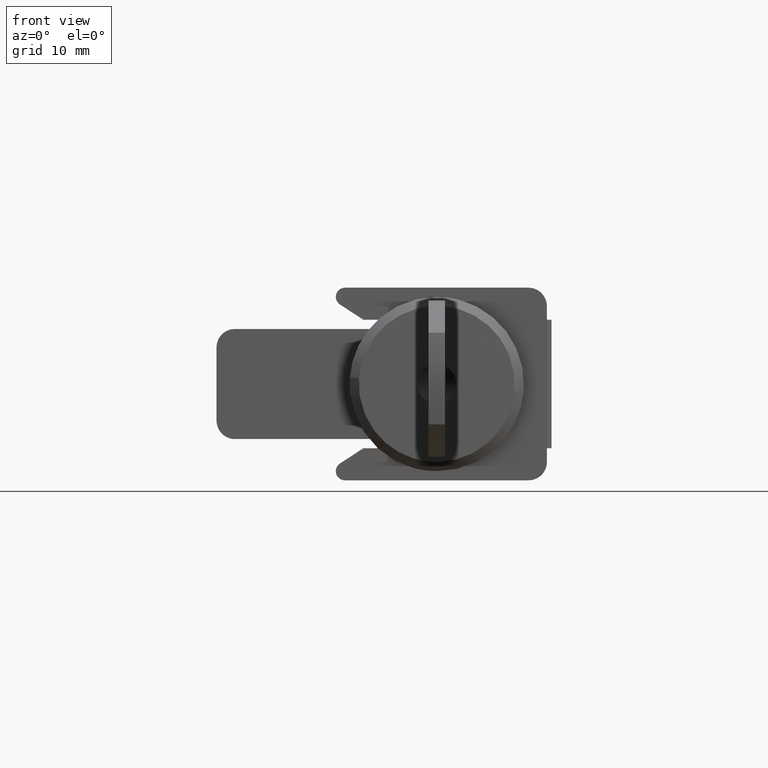
[diagram: clean part render]
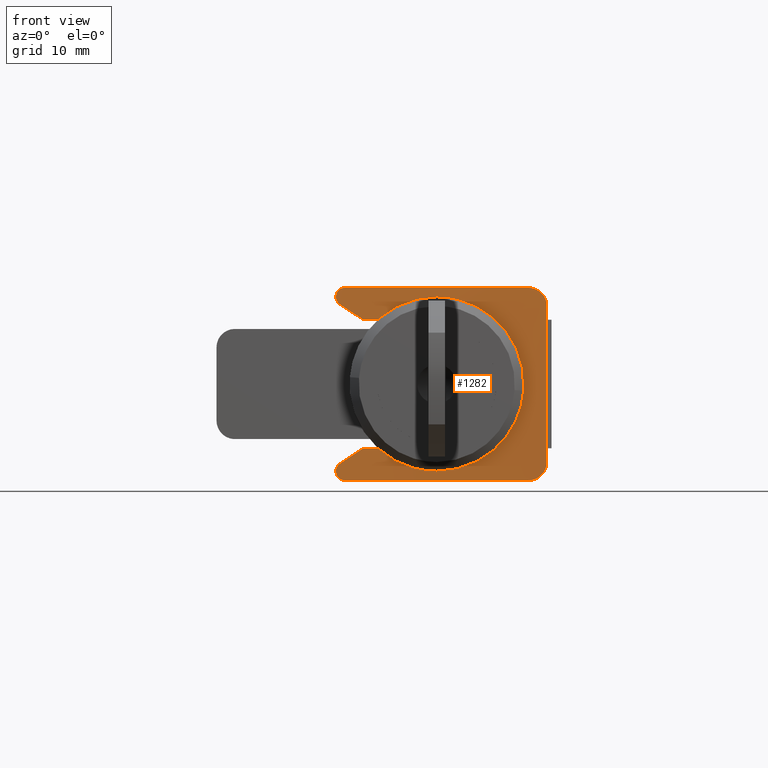
[diagram: same view with one face highlighted and labeled with its STEP entity id]
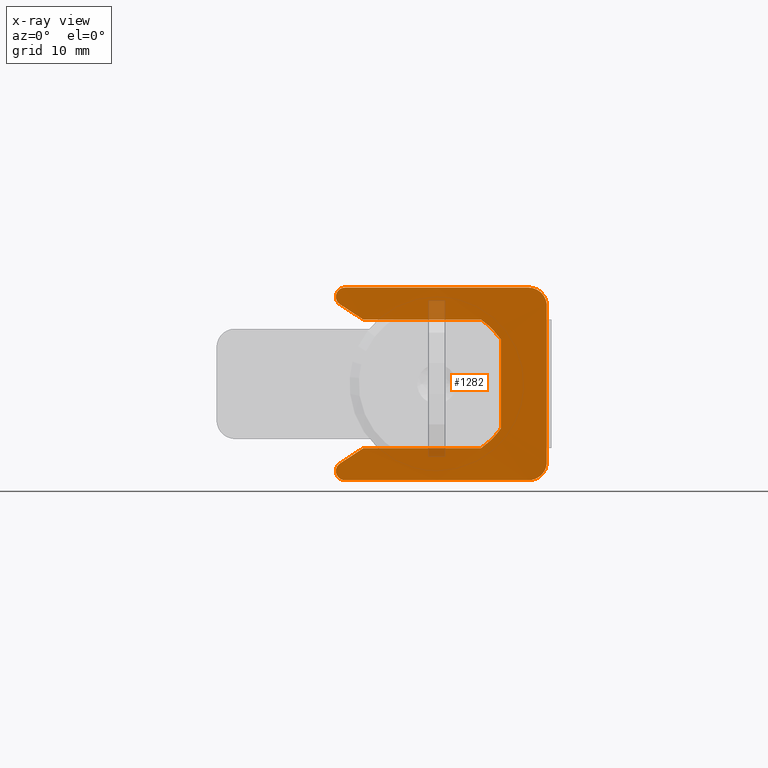
[diagram: x-ray of the same camera — body ghosted, the highlighted face saturated]
A machine part, front view. The second image highlights one B-rep face of the part: STEP entity #1282.
The next image is the same camera in x-ray: the body ghosted, the highlighted face saturated — about 2% of this face is hidden behind the body in this view.
In plain terms, the highlighted face is a freeform B-spline surface patch.
Its self-contained STEP definition (entity closure, byte-faithful):
#58=CARTESIAN_POINT('',(1.000302366013240,-11.982613954191740,8.763138573082980));
#59=VERTEX_POINT('',#58);
#69=CARTESIAN_POINT('',(1.000302366013242,-11.982613954191740,-8.763138573082999));
#70=VERTEX_POINT('',#69);
#71=CARTESIAN_POINT('',(1.000302366013242,-11.982613954191740,-8.763138573082999));
#72=CARTESIAN_POINT('',(1.000302366013240,-11.982613954191740,8.763138573082980));
#73=QUASI_UNIFORM_CURVE('',1,(#71,#72),.UNSPECIFIED.,.F.,.U.);
#74=EDGE_CURVE('',#70,#59,#73,.T.);
#157=CARTESIAN_POINT('',(1.033026148433924,10.0,10.500000000000000));
#158=VERTEX_POINT('',#157);
#195=CARTESIAN_POINT('',(1.000302366014580,10.982613954191301,9.685660488603862));
#196=VERTEX_POINT('',#195);
#210=CARTESIAN_POINT('',(1.033026148433924,10.0,10.500000000000000));
#211=CARTESIAN_POINT('',(1.031173298970400,10.058242651116069,10.500000000000000));
#212=CARTESIAN_POINT('',(1.029332381534336,10.115625438342530,10.494950962892069));
#213=CARTESIAN_POINT('',(1.025674731326555,10.228743480185070,10.475178486649790));
#214=CARTESIAN_POINT('',(1.023853056108356,10.284628769809389,10.460400490724121));
#215=CARTESIAN_POINT('',(1.020259541149240,10.394047722065830,10.420928353304999));
#216=CARTESIAN_POINT('',(1.018530374531536,10.446285745011160,10.396731135884171));
#217=CARTESIAN_POINT('',(1.016038606229017,10.521074489163240,10.353994028556009));
#218=CARTESIAN_POINT('',(1.015225119691351,10.545405896806450,10.338668535372060));
#219=CARTESIAN_POINT('',(1.013633741381828,10.592854754470331,10.305826125535960));
#220=CARTESIAN_POINT('',(1.012852726756055,10.616064629448900,10.288230912277880));
#221=CARTESIAN_POINT('',(1.010589308346767,10.683130877703480,10.232602620007460));
#222=CARTESIAN_POINT('',(1.009199409119234,10.724047145778130,10.192138365420110));
#223=CARTESIAN_POINT('',(1.007293014844282,10.779917535217709,10.126540968180770));
#224=CARTESIAN_POINT('',(1.006687456011701,10.797618388368070,10.103853636743199));
#225=CARTESIAN_POINT('',(1.005538126111800,10.831143388945840,10.056807843948411));
#226=CARTESIAN_POINT('',(1.004991819746984,10.847041075275870,10.032317936593969));
#227=CARTESIAN_POINT('',(1.003472349269748,10.891177754383691,9.957346788977832));
#228=CARTESIAN_POINT('',(1.002618139874530,10.915879142548610,9.905518549639393));
#229=CARTESIAN_POINT('',(1.001221386500168,10.956187368618640,9.798304565756837));
#230=CARTESIAN_POINT('',(1.000678785129788,10.971795177839439,9.742919201486460));
#231=CARTESIAN_POINT('',(1.000302366014580,10.982613954191301,9.685660488603862));
#232=B_SPLINE_CURVE_WITH_KNOTS('',3,(#210,#211,#212,#213,#214,#215,#216,#217,#218,#219,#220,#221,#222,#223,#224,#225,#226,#227,#228,#229,#230,#231),.UNSPECIFIED.,.F.,.U.,(4,2,2,2,2,2,2,2,2,2,4),(0.0,0.124999999999996,0.249999999999992,0.374999999999989,0.437499999999989,0.499999999999990,0.624999999999991,0.687499999999993,0.749999999999995,0.874999999999998,1.0),.UNSPECIFIED.);
#233=EDGE_CURVE('',#158,#196,#232,.T.);
#254=CARTESIAN_POINT('',(1.000302366014580,10.982613954191301,-9.685660488603311));
#255=VERTEX_POINT('',#254);
#302=CARTESIAN_POINT('',(1.033026148433924,10.0,-10.500000000000000));
#303=VERTEX_POINT('',#302);
#309=CARTESIAN_POINT('',(1.000302366014580,10.982613954191301,-9.685660488603311));
#310=CARTESIAN_POINT('',(1.000678785963048,10.971795153890850,-9.742919328234970));
#311=CARTESIAN_POINT('',(1.001221984150415,10.956170282923591,-9.798392321421583));
#312=CARTESIAN_POINT('',(1.002623880484035,10.915713314761829,-9.905917125282279));
#313=CARTESIAN_POINT('',(1.003485533593290,10.890796135133090,-9.958112133561739));
#314=CARTESIAN_POINT('',(1.005521152067391,10.831663968021410,-10.058318480420830));
#315=CARTESIAN_POINT('',(1.006670167269193,10.798172516502390,-10.105160886867210));
#316=CARTESIAN_POINT('',(1.008577634850927,10.742268729814731,-10.170717450952830));
#317=CARTESIAN_POINT('',(1.009244294491345,10.722684201512340,-10.191780564496939));
#318=CARTESIAN_POINT('',(1.010639212551010,10.681587422442639,-10.232305530567141));
#319=CARTESIAN_POINT('',(1.011370727571721,10.659978631987389,-10.251845467212080));
#320=CARTESIAN_POINT('',(1.013635697972513,10.592861488133661,-10.307396346831659));
#321=CARTESIAN_POINT('',(1.015224791993075,10.545502959923040,-10.340074694020370));
#322=CARTESIAN_POINT('',(1.017717787490208,10.470673784865030,-10.382774564056639));
#323=CARTESIAN_POINT('',(1.018567131111893,10.445095197067429,-10.395948858862701));
#324=CARTESIAN_POINT('',(1.020302333764687,10.392645267128231,-10.420143350979430));
#325=CARTESIAN_POINT('',(1.021192899702105,10.365630316004159,-10.431211363011590));
#326=CARTESIAN_POINT('',(1.023879977943943,10.283804027806431,-10.460633018448600));
#327=CARTESIAN_POINT('',(1.025688596837764,10.228316035114110,-10.475268432006420));
#328=CARTESIAN_POINT('',(1.029335250565229,10.115535337586641,-10.494951411942941));
#329=CARTESIAN_POINT('',(1.031173293425206,10.058242825422340,-10.500000000000000));
#330=CARTESIAN_POINT('',(1.033026148433924,10.0,-10.500000000000000));
#331=B_SPLINE_CURVE_WITH_KNOTS('',3,(#309,#310,#311,#312,#313,#314,#315,#316,#317,#318,#319,#320,#321,#322,#323,#324,#325,#326,#327,#328,#329,#330),.UNSPECIFIED.,.F.,.U.,(4,2,2,2,2,2,2,2,2,2,4),(0.0,0.125000000000000,0.249999999999999,0.374999999999999,0.437499999999999,0.499999999999999,0.625000000000003,0.687500000000003,0.750000000000003,0.875000000000001,1.0),.UNSPECIFIED.);
#332=EDGE_CURVE('',#255,#303,#331,.T.);
#351=CARTESIAN_POINT('',(1.136022267922532,-7.0,4.821825380496480));
#352=VERTEX_POINT('',#351);
#353=CARTESIAN_POINT('',(1.171717806794980,-4.821825380496490,7.0));
#354=VERTEX_POINT('',#353);
#355=CARTESIAN_POINT('',(1.136022267922532,-7.0,4.821825380496480));
#356=CARTESIAN_POINT('',(1.141852516876097,-6.703858314682732,5.251743851954575));
#357=CARTESIAN_POINT('',(1.147962534507046,-6.373437010665662,5.647378119913459));
#358=CARTESIAN_POINT('',(1.160079800079653,-5.647380746195929,6.373434683567060));
#359=CARTESIAN_POINT('',(1.166090733653488,-5.251745823499850,6.703856956618872));
#360=CARTESIAN_POINT('',(1.171717806794964,-4.821825380496490,7.0));
#361=B_SPLINE_CURVE_WITH_KNOTS('',3,(#355,#356,#357,#358,#359,#360),.UNSPECIFIED.,.F.,.U.,(4,2,4),(0.0,0.500000000000000,1.0),.UNSPECIFIED.);
#362=EDGE_CURVE('',#352,#354,#361,.T.);
#406=CARTESIAN_POINT('',(1.015181672332610,10.546678350318420,-8.662657309524271));
#407=VERTEX_POINT('',#406);
#434=CARTESIAN_POINT('',(1.000302366014580,10.982613954191301,-9.314339511396151));
#435=VERTEX_POINT('',#434);
#449=CARTESIAN_POINT('',(1.015181672332610,10.546678350318420,-8.662657309524271));
#450=CARTESIAN_POINT('',(1.013284862242098,10.603349286718901,-8.699656228097030));
#451=CARTESIAN_POINT('',(1.011530338788636,10.655336164235869,-8.741718037415188));
#452=CARTESIAN_POINT('',(1.009112255690321,10.726572811829159,-8.812100149116972));
#453=CARTESIAN_POINT('',(1.008342114289250,10.749185684820860,-8.836785190438331));
#454=CARTESIAN_POINT('',(1.006876981051610,10.792088472159920,-8.888666272618814));
#455=CARTESIAN_POINT('',(1.006182147961197,10.812373030844270,-8.915897797713779));
#456=CARTESIAN_POINT('',(1.004260271318189,10.868350102145060,-8.999530824186440));
#457=CARTESIAN_POINT('',(1.003176755725248,10.899728976840780,-9.058429927361084));
#458=CARTESIAN_POINT('',(1.001855205336104,10.937903233968861,-9.151486565660562));
#459=CARTESIAN_POINT('',(1.001464441594621,10.949169644604421,-9.183425371662555));
#460=CARTESIAN_POINT('',(1.000797445186273,10.968379922156950,-9.248240519724135));
#461=CARTESIAN_POINT('',(1.000521044566975,10.976328847363479,-9.281075386546489));
#462=CARTESIAN_POINT('',(1.000302366014580,10.982613954191301,-9.314339511396151));
#463=B_SPLINE_CURVE_WITH_KNOTS('',3,(#449,#450,#451,#452,#453,#454,#455,#456,#457,#458,#459,#460,#461,#462),.UNSPECIFIED.,.F.,.U.,(4,2,2,2,2,2,4),(0.0,0.249999999999994,0.374999999999993,0.499999999999992,0.749999999999996,0.874999999999998,1.0),.UNSPECIFIED.);
#464=EDGE_CURVE('',#407,#435,#463,.T.);
#474=CARTESIAN_POINT('',(1.090586764697032,8.0,-7.0));
#475=VERTEX_POINT('',#474);
#476=CARTESIAN_POINT('',(1.015181672332610,10.546678350318420,-8.662657309524271));
#477=CARTESIAN_POINT('',(1.057796370978748,9.273484713231497,-7.831423468980335));
#478=CARTESIAN_POINT('',(1.090586764697032,8.0,-7.0));
#486=(BOUNDED_CURVE()B_SPLINE_CURVE(2,(#476,#477,#478),.UNSPECIFIED.,.F.,.U.)CURVE()GEOMETRIC_REPRESENTATION_ITEM()QUASI_UNIFORM_CURVE()RATIONAL_B_SPLINE_CURVE((1.0,0.999992559216849,1.0))REPRESENTATION_ITEM(''));
#487=EDGE_CURVE('',#407,#475,#486,.T.);
#518=CARTESIAN_POINT('',(1.171717806795036,-4.821825380496460,-7.0));
#519=VERTEX_POINT('',#518);
#520=CARTESIAN_POINT('',(1.090586764697032,8.0,-7.0));
#521=CARTESIAN_POINT('',(1.255638233493229,1.589875003733507,-7.0));
#522=CARTESIAN_POINT('',(1.171717806795036,-4.821825380496460,-7.0));
#530=(BOUNDED_CURVE()B_SPLINE_CURVE(2,(#520,#521,#522),.UNSPECIFIED.,.F.,.U.)CURVE()GEOMETRIC_REPRESENTATION_ITEM()QUASI_UNIFORM_CURVE()RATIONAL_B_SPLINE_CURVE((1.0,0.999811527432228,1.0))REPRESENTATION_ITEM(''));
#531=EDGE_CURVE('',#475,#519,#530,.T.);
#571=CARTESIAN_POINT('',(1.136022267922532,-7.0,-4.821825380496480));
#572=VERTEX_POINT('',#571);
#573=CARTESIAN_POINT('',(1.171717806795036,-4.821825380496460,-7.0));
#574=CARTESIAN_POINT('',(1.166090733653560,-5.251745823499827,-6.703856956618870));
#575=CARTESIAN_POINT('',(1.160079800079662,-5.647380746195920,-6.373434683567071));
#576=CARTESIAN_POINT('',(1.147962534507055,-6.373437010665654,-5.647378119913463));
#577=CARTESIAN_POINT('',(1.141852516876043,-6.703858314682730,-5.251743851954575));
#578=CARTESIAN_POINT('',(1.136022267922532,-7.0,-4.821825380496480));
#579=B_SPLINE_CURVE_WITH_KNOTS('',3,(#573,#574,#575,#576,#577,#578),.UNSPECIFIED.,.F.,.U.,(4,2,4),(0.0,0.500000000000000,1.0),.UNSPECIFIED.);
#580=EDGE_CURVE('',#519,#572,#579,.T.);
#607=CARTESIAN_POINT('',(1.136022267922532,-7.0,-4.821825380496480));
#608=CARTESIAN_POINT('',(1.136022267922532,-7.0,4.821825380496480));
#609=QUASI_UNIFORM_CURVE('',1,(#607,#608),.UNSPECIFIED.,.F.,.U.);
#610=EDGE_CURVE('',#572,#352,#609,.T.);
#627=CARTESIAN_POINT('',(1.090586764697088,8.0,7.0));
#628=VERTEX_POINT('',#627);
#629=CARTESIAN_POINT('',(1.171717806794980,-4.821825380496490,7.0));
#630=CARTESIAN_POINT('',(1.255638233493228,1.589875003733434,7.0));
#631=CARTESIAN_POINT('',(1.090586764697088,8.0,7.0));
#639=(BOUNDED_CURVE()B_SPLINE_CURVE(2,(#629,#630,#631),.UNSPECIFIED.,.F.,.U.)CURVE()GEOMETRIC_REPRESENTATION_ITEM()QUASI_UNIFORM_CURVE()RATIONAL_B_SPLINE_CURVE((1.0,0.999811527432229,1.0))REPRESENTATION_ITEM(''));
#640=EDGE_CURVE('',#354,#628,#639,.T.);
#671=CARTESIAN_POINT('',(1.015181673562292,10.546678500000001,8.662657500000021));
#672=VERTEX_POINT('',#671);
#673=CARTESIAN_POINT('',(1.090586764697088,8.0,7.0));
#674=CARTESIAN_POINT('',(1.057796371452257,9.273484694845886,7.831423707005430));
#675=CARTESIAN_POINT('',(1.015181673562292,10.546678500000001,8.662657500000021));
#683=(BOUNDED_CURVE()B_SPLINE_CURVE(2,(#673,#674,#675),.UNSPECIFIED.,.F.,.U.)CURVE()GEOMETRIC_REPRESENTATION_ITEM()QUASI_UNIFORM_CURVE()RATIONAL_B_SPLINE_CURVE((1.0,0.999992559177473,1.0))REPRESENTATION_ITEM(''));
#684=EDGE_CURVE('',#628,#672,#683,.T.);
#724=CARTESIAN_POINT('',(1.000302366014580,10.982613954191301,9.314339511396490));
#725=VERTEX_POINT('',#724);
#763=CARTESIAN_POINT('',(1.000302366014580,10.982613954191301,9.314339511396490));
#764=CARTESIAN_POINT('',(1.000739720353863,10.970043820019161,9.247811682365439));
#765=CARTESIAN_POINT('',(1.001401678062523,10.951002520259779,9.183688418634944));
#766=CARTESIAN_POINT('',(1.002712895561114,10.913128646318190,9.090963598460192));
#767=CARTESIAN_POINT('',(1.003203404652687,10.898939958874900,9.060636490928005));
#768=CARTESIAN_POINT('',(1.004292790861458,10.867355657877630,9.001173872462841));
#769=CARTESIAN_POINT('',(1.004892815977162,10.849926033717580,8.972031222698202));
#770=CARTESIAN_POINT('',(1.006813428911318,10.793986993477009,8.888374440874852));
#771=CARTESIAN_POINT('',(1.008265114599422,10.751524924685530,8.836897362659364));
#772=CARTESIAN_POINT('',(1.010690024423160,10.680094037464240,8.766109132620169));
#773=CARTESIAN_POINT('',(1.011543447059770,10.654878122029270,8.743510466321149));
#774=CARTESIAN_POINT('',(1.013315698198860,10.602319014346490,8.701029678752146));
#775=CARTESIAN_POINT('',(1.014233269472028,10.575013845961591,8.681156796000757));
#776=CARTESIAN_POINT('',(1.015181673562292,10.546678500000001,8.662657500000021));
#777=B_SPLINE_CURVE_WITH_KNOTS('',3,(#763,#764,#765,#766,#767,#768,#769,#770,#771,#772,#773,#774,#775,#776),.UNSPECIFIED.,.F.,.U.,(4,2,2,2,2,2,4),(0.0,0.250000000000000,0.374999999999999,0.499999999999998,0.749999999999999,0.874999999999999,1.0),.UNSPECIFIED.);
#778=EDGE_CURVE('',#725,#672,#777,.T.);
#797=CARTESIAN_POINT('',(1.063322460821858,-10.0,10.500000000000000));
#798=VERTEX_POINT('',#797);
#799=CARTESIAN_POINT('',(1.000302366013240,-11.982613954191740,8.763138573082980));
#800=CARTESIAN_POINT('',(1.000848765025897,-11.966909733864080,8.881461804818116));
#801=CARTESIAN_POINT('',(1.001758326210261,-11.940750768593100,8.998003238612292));
#802=CARTESIAN_POINT('',(1.003671753972790,-11.885375989482560,9.170065348416427));
#803=CARTESIAN_POINT('',(1.004401621726556,-11.864208752193480,9.226856932275487));
#804=CARTESIAN_POINT('',(1.006012954987450,-11.817316963981600,9.337230150064118));
#805=CARTESIAN_POINT('',(1.006897454862697,-11.791504778585301,9.391104675931022));
#806=CARTESIAN_POINT('',(1.009778615188160,-11.707082613830700,9.548854904263353));
#807=CARTESIAN_POINT('',(1.012001339773419,-11.641545205350740,9.648889510898799));
#808=CARTESIAN_POINT('',(1.017042764772934,-11.491191499026590,9.838269659931855));
#809=CARTESIAN_POINT('',(1.019790134156540,-11.408491002318710,9.924911844203313));
#810=CARTESIAN_POINT('',(1.024198144278317,-11.274016926389800,10.042866176346211));
#811=CARTESIAN_POINT('',(1.025716354144612,-11.227422942841860,10.080196659825040));
#812=CARTESIAN_POINT('',(1.028847618042736,-11.130646330513510,10.150826289963041));
#813=CARTESIAN_POINT('',(1.030468069109609,-11.080231527054460,10.184260958791709));
#814=CARTESIAN_POINT('',(1.035416428498174,-10.925106138021590,10.277278579965540));
#815=CARTESIAN_POINT('',(1.038799467644025,-10.817527520876730,10.329174035460600));
#816=CARTESIAN_POINT('',(1.043975949353323,-10.650116146378600,10.392328254047481));
#817=CARTESIAN_POINT('',(1.045718622409898,-10.593298913065709,10.410916422549350));
#818=CARTESIAN_POINT('',(1.049236415884664,-10.477596370532540,10.443066360438550));
#819=CARTESIAN_POINT('',(1.051018148606283,-10.418486980764120,10.456654909722790));
#820=CARTESIAN_POINT('',(1.056329042055175,-10.240683042741381,10.489118103125660));
#821=CARTESIAN_POINT('',(1.059841558208845,-10.120947926755250,10.500000000000000));
#822=CARTESIAN_POINT('',(1.063322460821852,-10.0,10.500000000000000));
#823=B_SPLINE_CURVE_WITH_KNOTS('',3,(#799,#800,#801,#802,#803,#804,#805,#806,#807,#808,#809,#810,#811,#812,#813,#814,#815,#816,#817,#818,#819,#820,#821,#822),.UNSPECIFIED.,.F.,.U.,(4,2,2,2,2,2,2,2,2,2,2,4),(0.0,0.125000000000000,0.187500000000000,0.250000000000000,0.375000000000000,0.500000000000000,0.562500000000001,0.625000000000001,0.750000000000000,0.812499999999999,0.874999999999999,1.0),.UNSPECIFIED.);
#824=EDGE_CURVE('',#59,#798,#823,.T.);
#894=CARTESIAN_POINT('',(1.063322460821858,-10.0,-10.500000000000000));
#895=VERTEX_POINT('',#894);
#896=CARTESIAN_POINT('',(1.063322460821858,-10.0,-10.500000000000000));
#897=CARTESIAN_POINT('',(1.059840283542784,-10.120992216479850,-10.500000000000000));
#898=CARTESIAN_POINT('',(1.056344970342885,-10.240129004035341,-10.489111809852551));
#899=CARTESIAN_POINT('',(1.051087728076287,-10.416167681527909,-10.457130908631351));
#900=CARTESIAN_POINT('',(1.049333008087319,-10.474400016531741,-10.443846017925610));
#901=CARTESIAN_POINT('',(1.045820793033340,-10.589956760897250,-10.411947629346111));
#902=CARTESIAN_POINT('',(1.044054931865495,-10.647550848233930,-10.393227912664660));
#903=CARTESIAN_POINT('',(1.038821815538858,-10.816826103591049,-10.329571326255550));
#904=CARTESIAN_POINT('',(1.035439088223426,-10.924378801456861,-10.277573282035901));
#905=CARTESIAN_POINT('',(1.030539473863661,-11.078001346806680,-10.185667177019431));
#906=CARTESIAN_POINT('',(1.028935559708909,-11.127916566027061,-10.152699413340979));
#907=CARTESIAN_POINT('',(1.025791635697343,-11.225107441718549,-10.081999648236909));
#908=CARTESIAN_POINT('',(1.024245947154323,-11.272554080093180,-10.044091683731549));
#909=CARTESIAN_POINT('',(1.019799884664275,-11.408202458192720,-9.925278181571210));
#910=CARTESIAN_POINT('',(1.017064194606447,-11.490542674741119,-9.838864172755949));
#911=CARTESIAN_POINT('',(1.013322836800116,-11.602138053187989,-9.698633531612344));
#912=CARTESIAN_POINT('',(1.012136409733467,-11.637338798447590,-9.650111126933277));
#913=CARTESIAN_POINT('',(1.009892537157100,-11.703634813558709,-9.549410485571942));
#914=CARTESIAN_POINT('',(1.008838605770071,-11.734625184514149,-9.497332242508126));
#915=CARTESIAN_POINT('',(1.005939306240034,-11.819582025284980,-9.338752516567274));
#916=CARTESIAN_POINT('',(1.004331869325687,-11.866269703697091,-9.228943465035568));
#917=CARTESIAN_POINT('',(1.001788634665732,-11.939876073645239,-9.001200559710792));
#918=CARTESIAN_POINT('',(1.000853213871024,-11.966781868252349,-8.882425206508382));
#919=CARTESIAN_POINT('',(1.000302366013242,-11.982613954191740,-8.763138573082999));
#920=B_SPLINE_CURVE_WITH_KNOTS('',3,(#896,#897,#898,#899,#900,#901,#902,#903,#904,#905,#906,#907,#908,#909,#910,#911,#912,#913,#914,#915,#916,#917,#918,#919),.UNSPECIFIED.,.F.,.U.,(4,2,2,2,2,2,2,2,2,2,2,4),(0.0,0.125000000000003,0.187500000000004,0.250000000000005,0.375000000000004,0.437500000000003,0.500000000000003,0.625000000000003,0.687500000000003,0.750000000000002,0.875000000000001,1.0),.UNSPECIFIED.);
#921=EDGE_CURVE('',#895,#70,#920,.T.);
#1069=CARTESIAN_POINT('',(1.063322460821858,-10.0,10.500000000000000));
#1070=CARTESIAN_POINT('',(1.351137428518612,0.000458933271866,10.500000000000000));
#1071=CARTESIAN_POINT('',(1.033026148433924,10.0,10.500000000000000));
#1079=(BOUNDED_CURVE()B_SPLINE_CURVE(2,(#1069,#1070,#1071),.UNSPECIFIED.,.F.,.U.)CURVE()GEOMETRIC_REPRESENTATION_ITEM()QUASI_UNIFORM_CURVE()RATIONAL_B_SPLINE_CURVE((1.0,0.999541382415976,1.0))REPRESENTATION_ITEM(''));
#1080=EDGE_CURVE('',#798,#158,#1079,.T.);
#1104=CARTESIAN_POINT('',(1.063322460821858,-10.0,-10.500000000000000));
#1105=CARTESIAN_POINT('',(1.351137428518612,0.000458933271866,-10.500000000000000));
#1106=CARTESIAN_POINT('',(1.033026148433924,10.0,-10.500000000000000));
#1114=(BOUNDED_CURVE()B_SPLINE_CURVE(2,(#1104,#1105,#1106),.UNSPECIFIED.,.F.,.U.)CURVE()GEOMETRIC_REPRESENTATION_ITEM()QUASI_UNIFORM_CURVE()RATIONAL_B_SPLINE_CURVE((1.0,0.999541382415976,1.0))REPRESENTATION_ITEM(''));
#1115=EDGE_CURVE('',#895,#303,#1114,.T.);
#1223=CARTESIAN_POINT('',(1.000302366014580,10.982613954191301,-9.314339511396151));
#1224=CARTESIAN_POINT('',(1.000302366014580,10.982613954191301,-9.685660488603311));
#1225=QUASI_UNIFORM_CURVE('',1,(#1223,#1224),.UNSPECIFIED.,.F.,.U.);
#1226=EDGE_CURVE('',#435,#255,#1225,.T.);
#1238=CARTESIAN_POINT('',(1.000302366014580,10.982613954191301,9.685660488603862));
#1239=CARTESIAN_POINT('',(1.000302366014580,10.982613954191301,9.314339511396490));
#1240=QUASI_UNIFORM_CURVE('',1,(#1238,#1239),.UNSPECIFIED.,.F.,.U.);
#1241=EDGE_CURVE('',#196,#725,#1240,.T.);
#1248=CARTESIAN_POINT('',(0.958430059825254,-13.128796892483779,11.025000000000004));
#1249=CARTESIAN_POINT('',(0.958430059825254,-13.128796892483779,-11.038125000000001));
#1250=CARTESIAN_POINT('',(1.441751737064308,-0.499870619046316,11.024999999999997));
#1251=CARTESIAN_POINT('',(1.441751737064308,-0.499870619046316,-11.038125000000001));
#1252=CARTESIAN_POINT('',(0.958420171131494,12.129055275937040,11.025000000000004));
#1253=CARTESIAN_POINT('',(0.958420171131494,12.129055275937040,-11.038124999999994));
#1261=(BOUNDED_SURFACE()B_SPLINE_SURFACE(1,2,((#1248,#1250,#1252),(#1249,#1251,#1253)),.UNSPECIFIED.,.F.,.F.,.U.)B_SPLINE_SURFACE_WITH_KNOTS((2,2),(3,3),(0.0,22.063124999999999),(11.289150776720049,36.556482730054853),.UNSPECIFIED.)GEOMETRIC_REPRESENTATION_ITEM()RATIONAL_B_SPLINE_SURFACE(((0.998950613696307,0.998102715775822,0.998716217421503),(0.998950613696307,0.998102715775822,0.998716217421503)))REPRESENTATION_ITEM('')SURFACE());
#1262=ORIENTED_EDGE('',*,*,#921,.T.);
#1263=ORIENTED_EDGE('',*,*,#74,.T.);
#1264=ORIENTED_EDGE('',*,*,#824,.T.);
#1265=ORIENTED_EDGE('',*,*,#1080,.T.);
#1266=ORIENTED_EDGE('',*,*,#233,.T.);
#1267=ORIENTED_EDGE('',*,*,#1241,.T.);
#1268=ORIENTED_EDGE('',*,*,#778,.T.);
#1269=ORIENTED_EDGE('',*,*,#684,.F.);
#1270=ORIENTED_EDGE('',*,*,#640,.F.);
#1271=ORIENTED_EDGE('',*,*,#362,.F.);
#1272=ORIENTED_EDGE('',*,*,#610,.F.);
#1273=ORIENTED_EDGE('',*,*,#580,.F.);
#1274=ORIENTED_EDGE('',*,*,#531,.F.);
#1275=ORIENTED_EDGE('',*,*,#487,.F.);
#1276=ORIENTED_EDGE('',*,*,#464,.T.);
#1277=ORIENTED_EDGE('',*,*,#1226,.T.);
#1278=ORIENTED_EDGE('',*,*,#332,.T.);
#1279=ORIENTED_EDGE('',*,*,#1115,.F.);
#1280=EDGE_LOOP('',(#1262,#1263,#1264,#1265,#1266,#1267,#1268,#1269,#1270,#1271,#1272,#1273,#1274,#1275,#1276,#1277,#1278,#1279));
#1281=FACE_OUTER_BOUND('',#1280,.T.);
#1282=ADVANCED_FACE('',(#1281),#1261,.F.);